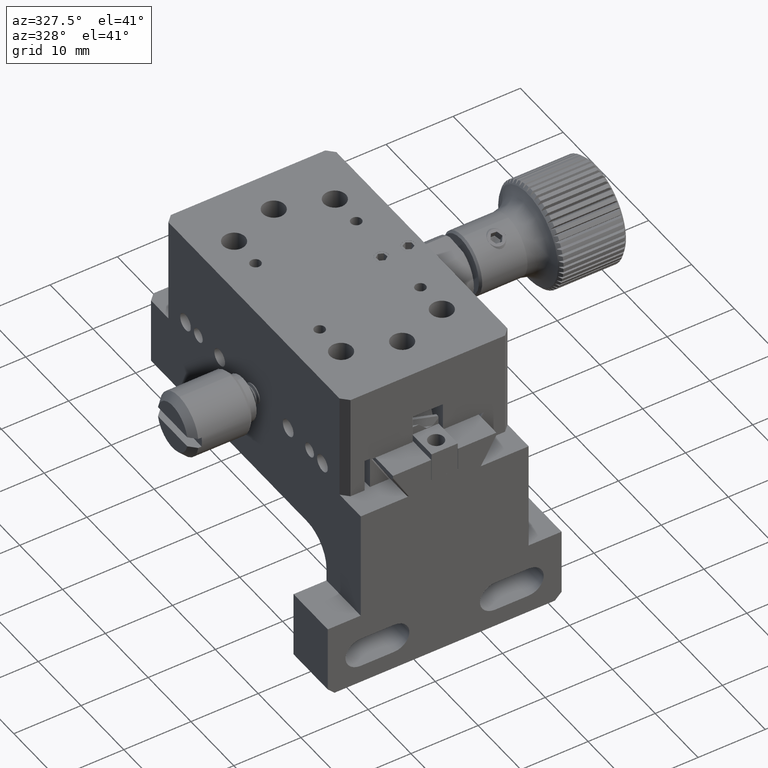
[diagram: clean part render]
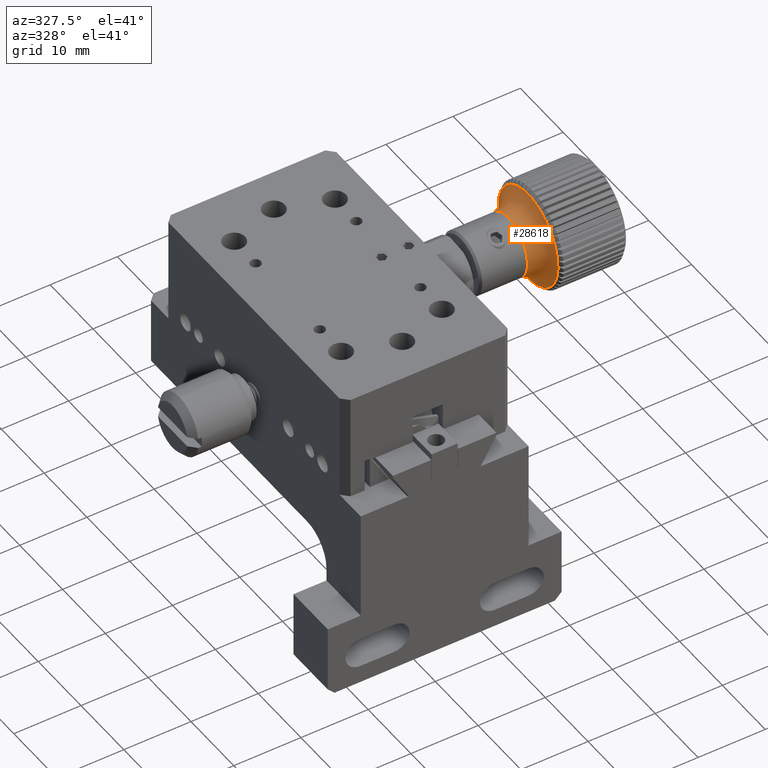
[diagram: same view with one face highlighted and labeled with its STEP entity id]
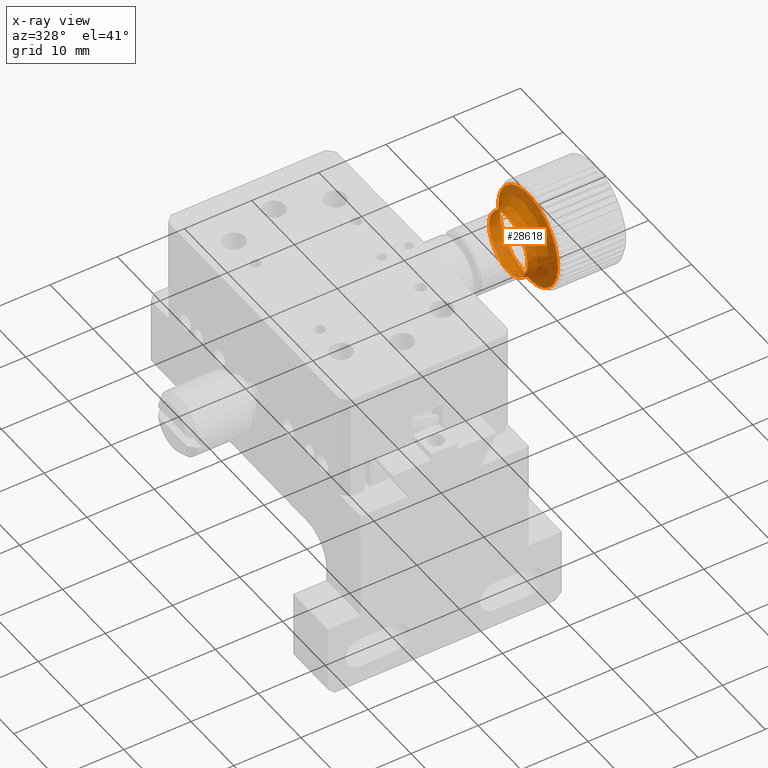
[diagram: x-ray of the same camera — body ghosted, the highlighted face saturated]
A machine part, auxiliary view. The second image highlights one B-rep face of the part: STEP entity #28618.
The next image is the same camera in x-ray: the body ghosted, the highlighted face saturated — about 6% of this face is hidden behind the body in this view.
In plain terms, the highlighted face is a freeform B-spline surface patch.
Its self-contained STEP definition (entity closure, byte-faithful):
#4311 = CARTESIAN_POINT ( 'NONE',  ( 91.75578172914585195, 38.53242259460701291, 95.03034679017157771 ) ) ;
#5347 = EDGE_LOOP ( 'NONE', ( #53161 ) ) ;
#5500 = CARTESIAN_POINT ( 'NONE',  ( 91.75578172914585195, 43.46677490261456711, 85.22353929248120608 ) ) ;
#5934 = AXIS2_PLACEMENT_3D ( 'NONE', #97071, #48147, #67479 ) ;
#6696 = CARTESIAN_POINT ( 'NONE',  ( 89.05312889220756745, 30.49832895321982207, 88.77343005711436774 ) ) ;
#13370 = CARTESIAN_POINT ( 'NONE',  ( 92.01116878375734132, 38.60283837553414799, 67.10393705373239470 ) ) ;
#21814 = AXIS2_PLACEMENT_3D ( 'NONE', #36010, #37198, #46830 ) ;
#23025 = CARTESIAN_POINT ( 'NONE',  ( 92.01116878375734132, 51.10899235462427015, 73.39648126504221182 ) ) ;
#23619 = CARTESIAN_POINT ( 'NONE',  ( 90.58545121987668836, 34.54353594620471313, 80.73375964198498878 ) ) ;
#24211 = CARTESIAN_POINT ( 'NONE',  ( 90.58545121987668836, 42.58320636133407788, 84.77896663496987628 ) ) ;
#28618 = ADVANCED_FACE ( 'NONE', ( #49010, #85883 ), #70360, .F. ) ;
#31497 = CARTESIAN_POINT ( 'NONE',  ( 91.75578172914585195, 33.65996740492420969, 80.28918698447364477 ) ) ;
#32085 = CARTESIAN_POINT ( 'NONE',  ( 91.75578172914583774, 38.59431971293174968, 70.48237948678328735 ) ) ;
#33279 = CARTESIAN_POINT ( 'NONE',  ( 91.75578172914585195, 43.46677490261456711, 85.22353929248120608 ) ) ;
#33467 = CIRCLE ( 'NONE', #21814, 4.500000000000002665 ) ;
#33866 = CARTESIAN_POINT ( 'NONE',  ( 92.01116878375736974, 44.81644814331446014, 85.90263524413232687 ) ) ;
#36010 = CARTESIAN_POINT ( 'NONE',  ( 89.05312889220755324, 38.56337115376939551, 82.75636313847742542 ) ) ;
#37198 = DIRECTION ( 'NONE',  ( -1.000000000000000000, 1.871353702729745091E-16, 9.203565981303910277E-16 ) ) ;
#39879 = CARTESIAN_POINT ( 'NONE',  ( 92.01116878375735553, 44.81644814331446014, 85.90263524413231266 ) ) ;
#41740 = CARTESIAN_POINT ( 'NONE',  ( 90.58545121987670257, 38.58874293918960063, 72.69408922685559560 ) ) ;
#43525 = CARTESIAN_POINT ( 'NONE',  ( 90.58545121987668836, 42.58320636133407788, 84.77896663496987628 ) ) ;
#46830 = DIRECTION ( 'NONE',  ( 0.000000000000000000, 0.8932967127921505046, 0.4494674436649868654 ) ) ;
#48147 = DIRECTION ( 'NONE',  ( 1.000000000000000000, -1.871353702729745091E-16, -9.203565981303910277E-16 ) ) ;
#49010 = FACE_OUTER_BOUND ( 'NONE', #5347, .T. ) ;
#52584 = CARTESIAN_POINT ( 'NONE',  ( 90.58545121987670257, 46.62841335431893697, 76.73929621984052574 ) ) ;
#53161 = ORIENTED_EDGE ( 'NONE', *, *, #89170, .F. ) ;
#59273 = CARTESIAN_POINT ( 'NONE',  ( 92.01116878375738395, 38.52390393200464302, 98.40878922322241351 ) ) ;
#59861 = CARTESIAN_POINT ( 'NONE',  ( 92.01116878375738395, 26.01774995291451376, 92.11624501191265324 ) ) ;
#60451 = CARTESIAN_POINT ( 'NONE',  ( 92.01116878375736974, 32.31029416422433087, 79.61009103282250976 ) ) ;
#61650 = CARTESIAN_POINT ( 'NONE',  ( 90.58545121987670257, 30.49832895321982917, 88.77343005711433932 ) ) ;
#61972 = EDGE_LOOP ( 'NONE', ( #70721 ) ) ;
#66449 = CARTESIAN_POINT ( 'NONE',  ( 89.05312889220755324, 42.58320636133407788, 84.77896663496986207 ) ) ;
#67479 = DIRECTION ( 'NONE',  ( 0.000000000000000000, 0.8932967127921507267, 0.4494674436649863658 ) ) ;
#70127 = CARTESIAN_POINT ( 'NONE',  ( 91.75578172914583774, 48.40112721062209999, 75.41673179479083444 ) ) ;
#70360 =( BOUNDED_SURFACE ( )  B_SPLINE_SURFACE ( 3, 3, ( 
 ( #76831, #96157, #6696, #88253, #97326, #98517, #88858 ),
 ( #43525, #80387, #61650, #23619, #41740, #52584, #24211 ),
 ( #33279, #4311, #78017, #31497, #32085, #70127, #5500 ),
 ( #89458, #59273, #59861, #60451, #13370, #23025, #33866 ) ),
 .UNSPECIFIED., .F., .T., .T. ) 
 B_SPLINE_SURFACE_WITH_KNOTS ( ( 4, 4 ),
 ( 4, 3, 4 ),
 ( 0.000000000000000000, 1.000000000000000000 ),
 ( 0.000000000000000000, 0.5000000000000000000, 1.000000000000000000 ),
 .UNSPECIFIED. ) 
 GEOMETRIC_REPRESENTATION_ITEM ( )  RATIONAL_B_SPLINE_SURFACE ( (
 ( 1.000000000000000000, 0.3333333333333333148, 0.3333333333333333148, 1.000000000000000000, 0.3333333333333333148, 0.3333333333333333148, 1.000000000000000000),
 ( 0.8425084105506486232, 0.2808361368502161892, 0.2808361368502161892, 0.8425084105506486232, 0.2808361368502161892, 0.2808361368502161892, 0.8425084105506486232),
 ( 0.8425084105506486232, 0.2808361368502161892, 0.2808361368502161892, 0.8425084105506486232, 0.2808361368502161892, 0.2808361368502161892, 0.8425084105506486232),
 ( 1.000000000000000000, 0.3333333333333333148, 0.3333333333333333148, 1.000000000000000000, 0.3333333333333333148, 0.3333333333333333148, 1.000000000000000000) ) ) 
 REPRESENTATION_ITEM ( '' )  SURFACE ( )  );
#70721 = ORIENTED_EDGE ( 'NONE', *, *, #94622, .F. ) ;
#76130 = VERTEX_POINT ( 'NONE', #66449 ) ;
#76831 = CARTESIAN_POINT ( 'NONE',  ( 89.05312889220755324, 42.58320636133407788, 84.77896663496986207 ) ) ;
#78017 = CARTESIAN_POINT ( 'NONE',  ( 91.75578172914585195, 28.72561509691664128, 90.09599448216398798 ) ) ;
#80387 = CARTESIAN_POINT ( 'NONE',  ( 90.58545121987670257, 38.53799936834918327, 92.81863705009921262 ) ) ;
#85883 = FACE_OUTER_BOUND ( 'NONE', #61972, .T. ) ;
#88253 = CARTESIAN_POINT ( 'NONE',  ( 89.05312889220755324, 34.54353594620471313, 80.73375964198497456 ) ) ;
#88858 = CARTESIAN_POINT ( 'NONE',  ( 89.05312889220755324, 42.58320636133407788, 84.77896663496986207 ) ) ;
#89170 = EDGE_CURVE ( 'NONE', #104514, #104514, #102393, .T. ) ;
#89458 = CARTESIAN_POINT ( 'NONE',  ( 92.01116878375736974, 44.81644814331446014, 85.90263524413232687 ) ) ;
#94622 = EDGE_CURVE ( 'NONE', #76130, #76130, #33467, .T. ) ;
#96157 = CARTESIAN_POINT ( 'NONE',  ( 89.05312889220756745, 38.53799936834919748, 92.81863705009922683 ) ) ;
#97071 = CARTESIAN_POINT ( 'NONE',  ( 92.01116878375735553, 38.56337115376939551, 82.75636313847741121 ) ) ;
#97326 = CARTESIAN_POINT ( 'NONE',  ( 89.05312889220756745, 38.58874293918960063, 72.69408922685560981 ) ) ;
#98517 = CARTESIAN_POINT ( 'NONE',  ( 89.05312889220756745, 46.62841335431895828, 76.73929621984051153 ) ) ;
#102393 = CIRCLE ( 'NONE', #5934, 7.000000000000005329 ) ;
#104514 = VERTEX_POINT ( 'NONE', #39879 ) ;